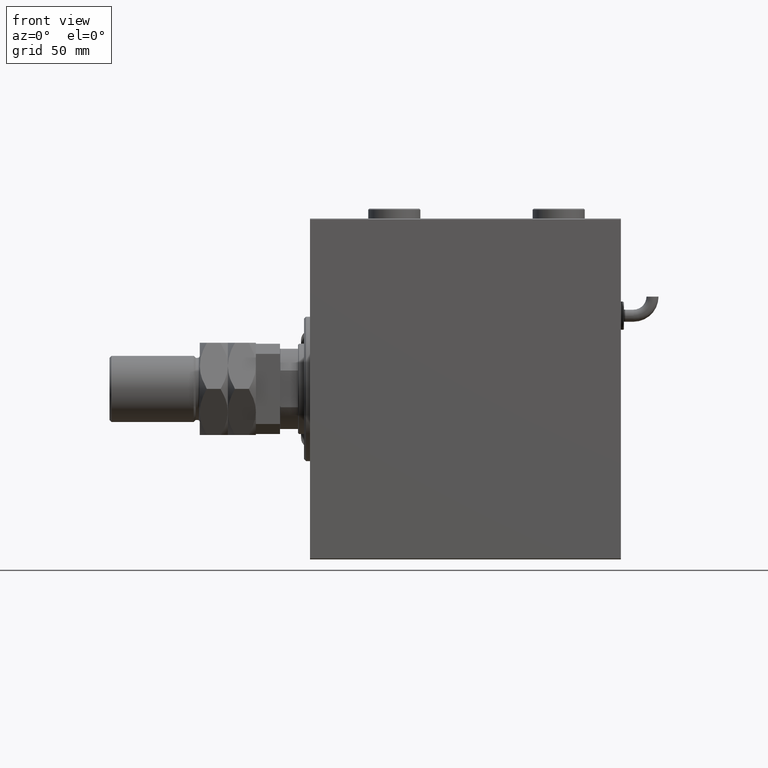
[diagram: clean part render]
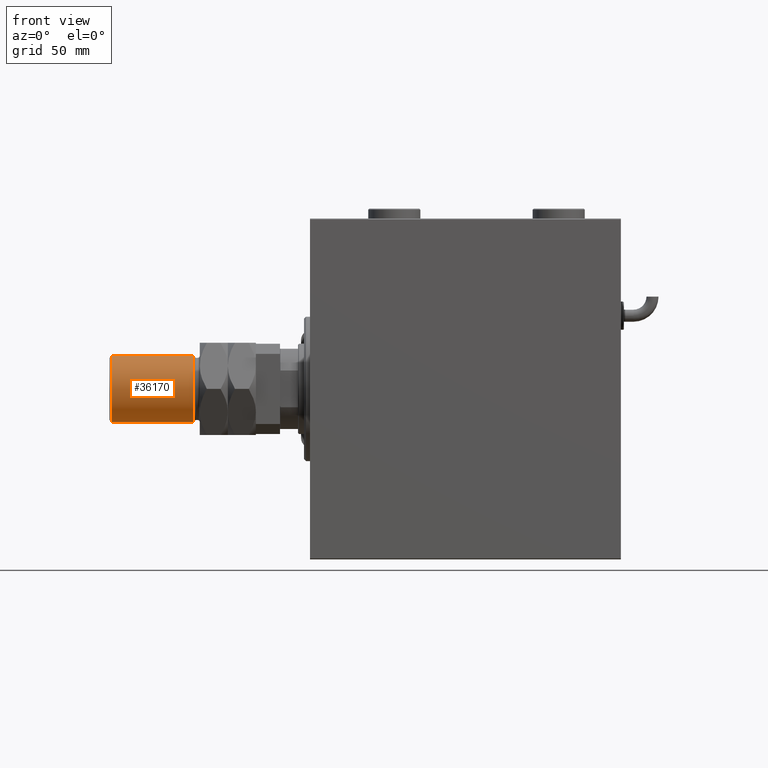
[diagram: same view with one face highlighted and labeled with its STEP entity id]
A machine part, front view. The second image highlights one B-rep face of the part: STEP entity #36170.
In plain terms, the highlighted cylindrical surface (edge-blend (fillet) strip) has radius 16.5 mm, axis along (1, -0, -0).
Its self-contained STEP definition (entity closure, byte-faithful):
#1289 = CARTESIAN_POINT ( 'NONE',  ( -16.50000000000000000, 0.000000000000000000, 72.00000000000000000 ) ) ;
#1536 = CYLINDRICAL_SURFACE ( 'NONE', #36795, 16.50000000000000000 ) ;
#3665 = AXIS2_PLACEMENT_3D ( 'NONE', #11456, #45923, #21667 ) ;
#7400 = EDGE_CURVE ( 'NONE', #47868, #25079, #33565, .T. ) ;
#11456 = CARTESIAN_POINT ( 'NONE',  ( 0.000000000000000000, 0.000000000000000000, 30.99999999999998579 ) ) ;
#18875 = DIRECTION ( 'NONE',  ( -0.000000000000000000, -0.000000000000000000, -1.000000000000000000 ) ) ;
#20198 = CIRCLE ( 'NONE', #36530, 16.50000000000000000 ) ;
#20840 = LINE ( 'NONE', #54692, #29167 ) ;
#20998 = CIRCLE ( 'NONE', #3665, 16.50000000000000000 ) ;
#21029 = DIRECTION ( 'NONE',  ( -0.000000000000000000, -0.000000000000000000, -1.000000000000000000 ) ) ;
#21281 = DIRECTION ( 'NONE',  ( 1.000000000000000000, 0.000000000000000000, 0.000000000000000000 ) ) ;
#21636 = ORIENTED_EDGE ( 'NONE', *, *, #57999, .T. ) ;
#21667 = DIRECTION ( 'NONE',  ( 1.000000000000000000, 0.000000000000000000, 0.000000000000000000 ) ) ;
#24391 = VERTEX_POINT ( 'NONE', #1289 ) ;
#25079 = VERTEX_POINT ( 'NONE', #41905 ) ;
#26505 = EDGE_CURVE ( 'NONE', #46607, #25079, #20998, .T. ) ;
#27945 = EDGE_LOOP ( 'NONE', ( #46159, #60633, #21636, #57235 ) ) ;
#28231 = EDGE_CURVE ( 'NONE', #47868, #24391, #20198, .T. ) ;
#29167 = VECTOR ( 'NONE', #60423, 1000.000000000000000 ) ;
#29400 = CARTESIAN_POINT ( 'NONE',  ( 16.50000000000000000, 2.020667218593133100E-15, 73.00000000000000000 ) ) ;
#30764 = CARTESIAN_POINT ( 'NONE',  ( -16.50000000000000000, 0.000000000000000000, 30.99999999999998579 ) ) ;
#33565 = LINE ( 'NONE', #29400, #43973 ) ;
#36170 = ADVANCED_FACE ( 'NONE', ( #36670 ), #1536, .T. ) ;
#36291 = CARTESIAN_POINT ( 'NONE',  ( 0.000000000000000000, 0.000000000000000000, 72.00000000000000000 ) ) ;
#36530 = AXIS2_PLACEMENT_3D ( 'NONE', #36291, #37232, #21281 ) ;
#36670 = FACE_OUTER_BOUND ( 'NONE', #27945, .T. ) ;
#36795 = AXIS2_PLACEMENT_3D ( 'NONE', #55182, #21029, #40501 ) ;
#37232 = DIRECTION ( 'NONE',  ( 0.000000000000000000, 0.000000000000000000, -1.000000000000000000 ) ) ;
#40501 = DIRECTION ( 'NONE',  ( -1.000000000000000000, 0.000000000000000000, 0.000000000000000000 ) ) ;
#41905 = CARTESIAN_POINT ( 'NONE',  ( 16.50000000000000000, 2.020667218593133100E-15, 30.99999999999998579 ) ) ;
#43973 = VECTOR ( 'NONE', #18875, 1000.000000000000000 ) ;
#45923 = DIRECTION ( 'NONE',  ( -0.000000000000000000, -0.000000000000000000, 1.000000000000000000 ) ) ;
#46159 = ORIENTED_EDGE ( 'NONE', *, *, #7400, .F. ) ;
#46607 = VERTEX_POINT ( 'NONE', #30764 ) ;
#47868 = VERTEX_POINT ( 'NONE', #52766 ) ;
#52766 = CARTESIAN_POINT ( 'NONE',  ( 16.50000000000000000, 2.020667218593133100E-15, 72.00000000000000000 ) ) ;
#54692 = CARTESIAN_POINT ( 'NONE',  ( -16.50000000000000000, 0.000000000000000000, 73.00000000000000000 ) ) ;
#55182 = CARTESIAN_POINT ( 'NONE',  ( 0.000000000000000000, 0.000000000000000000, 73.00000000000000000 ) ) ;
#57235 = ORIENTED_EDGE ( 'NONE', *, *, #26505, .T. ) ;
#57999 = EDGE_CURVE ( 'NONE', #24391, #46607, #20840, .T. ) ;
#60423 = DIRECTION ( 'NONE',  ( -0.000000000000000000, -0.000000000000000000, -1.000000000000000000 ) ) ;
#60633 = ORIENTED_EDGE ( 'NONE', *, *, #28231, .T. ) ;